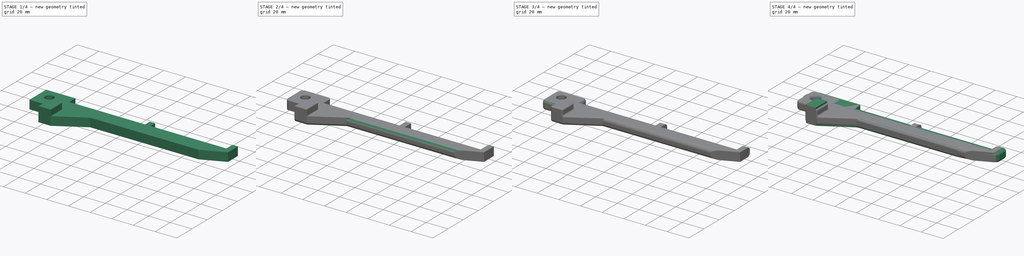
[diagram: build sequence overview — one tinted view per stage of 4, left to right]
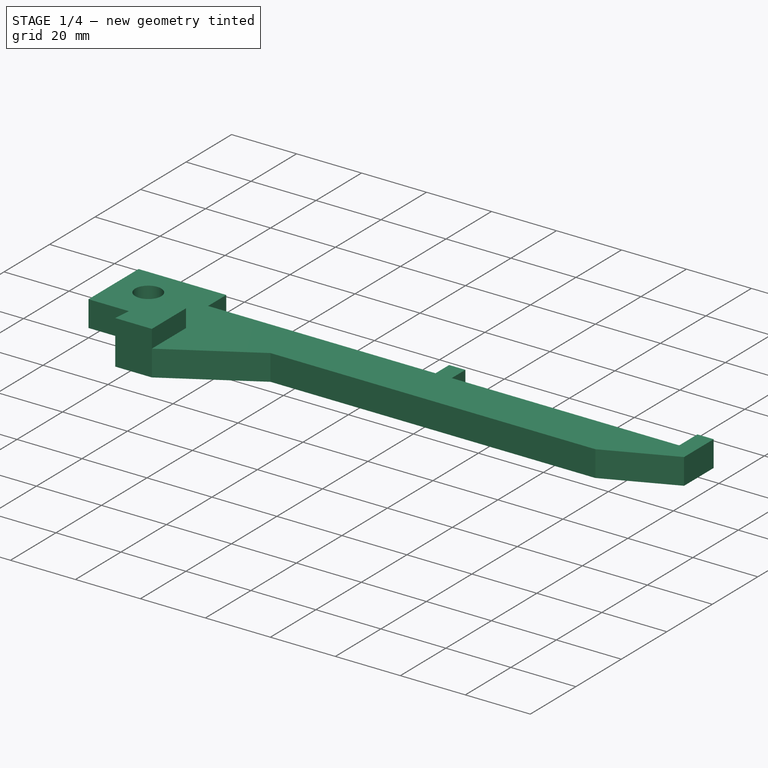
[diagram: stage 1 of 4 — iso view after this stage's code; geometry added in this stage tinted green]
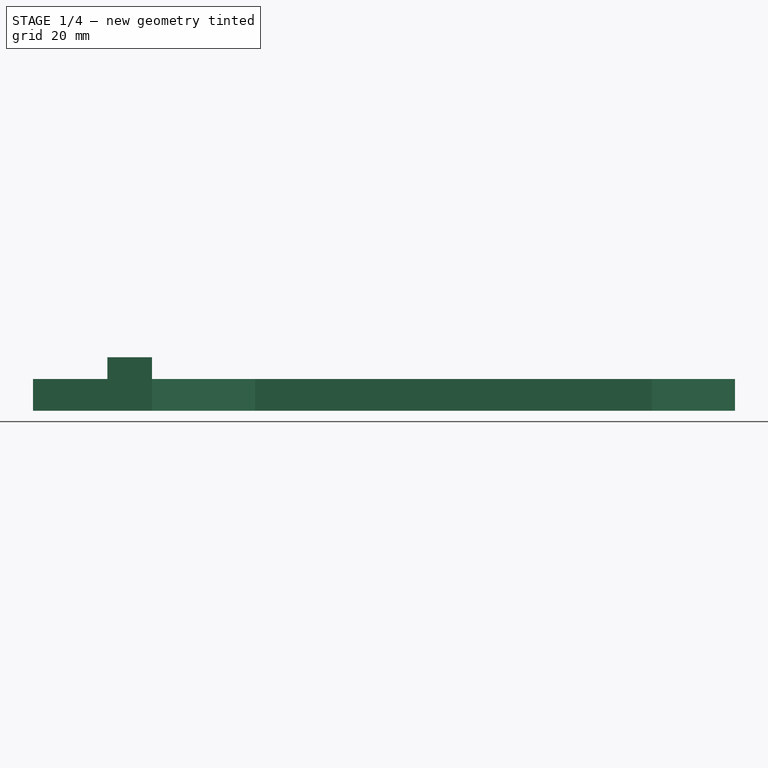
[diagram: stage 1 of 4 — front view after this stage's code; geometry added in this stage tinted green]
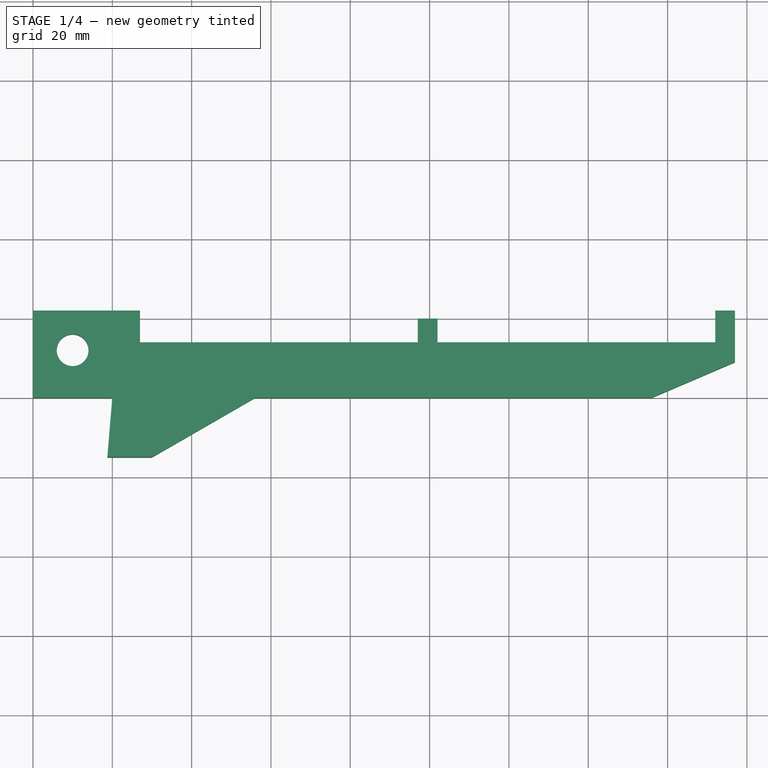
[diagram: stage 1 of 4 — top view after this stage's code; geometry added in this stage tinted green]
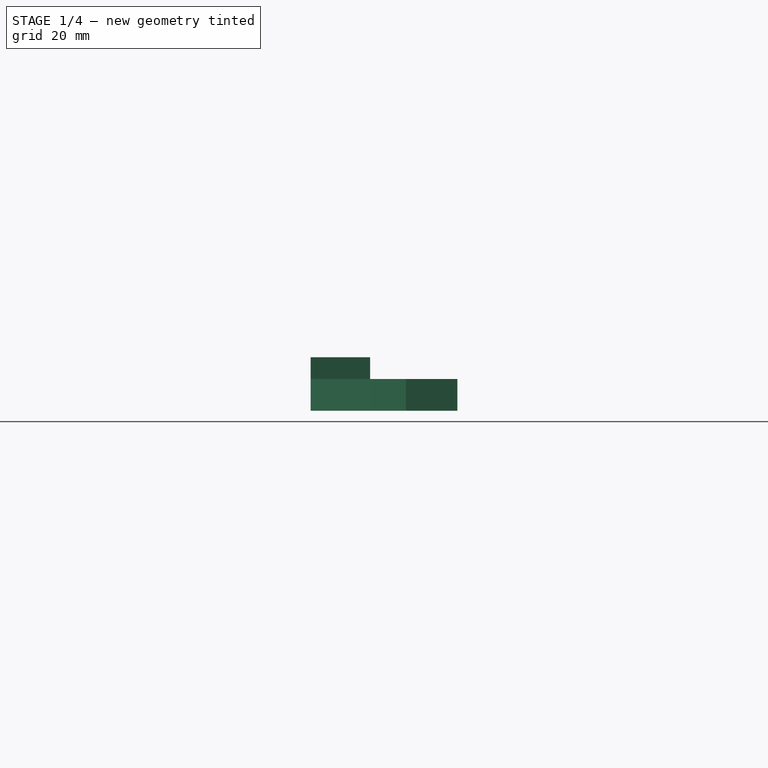
[diagram: stage 1 of 4 — right view after this stage's code; geometry added in this stage tinted green]
FCSTD DOCUMENT  (FreeCAD 0.17R11850 (Git))
Label: spool_arm_v1.1
License: CreativeCommons Attribution-ShareAlike
LicenseURL: http://creativecommons.org/licenses/by-sa/4.0/
objects: PartDesign::Fillet×5, Sketcher::SketchObject×2, Part::FeaturePython×1, PartDesign::Pad×1, PartDesign::Pocket×1, PartDesign::Chamfer×1, PartDesign::Body×1, Part::Feature×1
note: 15 computed .brp shape members not serialized (recipe doc carries the construction recipe); baked Part::Feature solids carry a one-line shape summary decoded from their .brp

FEATURE [Sketcher::SketchObject] Sketch
  MapMode = 5
  Support = -> [XY_Plane]
  sketch-geometry (18):
    g0: LineSegment StartX=0 StartY=22 StartZ=0 EndX=27 EndY=22 EndZ=0
    g1: LineSegment StartX=27 StartY=22 StartZ=0 EndX=27 EndY=14 EndZ=0
    g2: LineSegment StartX=172 StartY=14 StartZ=0 EndX=172 EndY=22 EndZ=0
    g3: LineSegment StartX=172 StartY=22 StartZ=0 EndX=177 EndY=22 EndZ=0
    g4: LineSegment StartX=177 StartY=22 StartZ=0 EndX=177 EndY=9 EndZ=0
    g5: LineSegment StartX=177 StartY=9 StartZ=0 EndX=156 EndY=0 EndZ=0
    g6: LineSegment StartX=156 StartY=0 StartZ=0 EndX=56 EndY=0 EndZ=0
    g7: LineSegment StartX=56 StartY=0 StartZ=0 EndX=30 EndY=-15 EndZ=0
    g8: LineSegment StartX=30 StartY=-15 StartZ=0 EndX=18.75 EndY=-15 EndZ=0
    g9: LineSegment StartX=18.75 StartY=-15 StartZ=0 EndX=20 EndY=0 EndZ=0
    g10: LineSegment StartX=20 StartY=0 StartZ=0 EndX=0 EndY=0 EndZ=0
    g11: LineSegment StartX=0 StartY=0 StartZ=0 EndX=0 EndY=22 EndZ=0
    g12: LineSegment StartX=27 StartY=14 StartZ=0 EndX=97 EndY=14 EndZ=0
    g13: LineSegment StartX=97 StartY=14 StartZ=0 EndX=97 EndY=20 EndZ=0
    g14: LineSegment StartX=97 StartY=20 StartZ=0 EndX=102 EndY=20 EndZ=0
    g15: LineSegment StartX=102 StartY=20 StartZ=0 EndX=102 EndY=14 EndZ=0
    g16: LineSegment StartX=102 StartY=14 StartZ=0 EndX=172 EndY=14 EndZ=0
    g17: Circle CenterX=10 CenterY=12 CenterZ=0 NormalX=0 NormalY=0 NormalZ=1 Radius=4
  constraints (55):
    c: Coincident(g0,g1)
    c: Coincident(g2,g3)
    c: Coincident(g3,g4)
    c: Coincident(g4,g5)
    c: Coincident(g5,g6)
    c: Coincident(g6,g7)
    c: Coincident(g7,g8)
    c: Coincident(g8,g9)
    c: Coincident(g9,g10)
    c: Coincident(g10,g11)
    c: Coincident(g0,g11)
    c: Vertical(g11)
    c: PointOnObject(g10,g-2)
    c: PointOnObject(g9,g-1)
    c: Horizontal(g0)
    c: Vertical(g1)
    c: Vertical(g2)
    c: Vertical(g4)
    c: Horizontal(g3)
    c: Horizontal(g6)
    c: PointOnObject(g6,g-1)
    c: DistanceY(g0) = 22
    c: DistanceY(g1,g1) = 8
    c: Coincident(g12,g13)
    c: Coincident(g13,g14)
    c: Coincident(g14,g15)
    c: Coincident(g15,g16)
    c: Coincident(g2,g16)
    c: Coincident(g1,g12)
    c: Horizontal(g12)
    c: Horizontal(g16)
    c: Vertical(g15)
    c: Vertical(g13)
    c: Horizontal(g14)
    c: DistanceY(g15,g15) = 6
    c: Equal(g12,g16)
    c: DistanceX(g16,g16) = 70
    c: Equal(g12,g16)
    c: DistanceX(g0,g0) = 27
    c: DistanceY(g9,g9) = 15
    c: DistanceX(g3,g3) = 5
    c: DistanceY(g4,g4) = 13
    c: DistanceX(g5,g5) = 21
    c: DistanceX(g6,g6) = 100
    c: DistanceY(g7,g7) = 15
    c: DistanceX(g7,g7) = 26
    c: DistanceX(g10,g10) = 20
    c: Coincident(g10,g-1)
    c: Equal(g2,g1)
    c: DistanceX(g17) = 10
    c: DistanceY(g17) = 12
    c: Radius(g17) = 4
    c: DistanceY(g2,g0) = 0
    c: DistanceX(g9,g9) = 1.25
    c: DistanceX(g8,g8) = 11.25
FEATURE [PartDesign::Pad] Pad
  Length = 13.5
  Length2 = 100
  Profile = -> Sketch
  Type = 0
FEATURE [Sketcher::SketchObject] Sketch001
  ExternalGeometry = -> [Pad]
  MapMode = 5
  Placement = pos=(0,0,13.5) rot=(0,0,1;0rad)
  Support = -> [Pad]
  sketch-geometry (8):
    g0: LineSegment StartX=30 StartY=0 StartZ=0 EndX=0 EndY=0 EndZ=0
    g1: LineSegment StartX=0 StartY=0 StartZ=0 EndX=0 EndY=22 EndZ=0
    g2: LineSegment StartX=0 StartY=22 StartZ=0 EndX=177 EndY=22 EndZ=0
    g3: LineSegment StartX=177 StartY=22 StartZ=0 EndX=177 EndY=9 EndZ=0
    g4: LineSegment StartX=177 StartY=9 StartZ=0 EndX=156 EndY=0 EndZ=0
    g5: LineSegment StartX=156 StartY=0 StartZ=0 EndX=56 EndY=0 EndZ=0
    g6: LineSegment StartX=56 StartY=0 StartZ=0 EndX=30 EndY=-15 EndZ=0
    g7: LineSegment StartX=30 StartY=-15 StartZ=0 EndX=30 EndY=0 EndZ=0
  constraints (18):
    c: Coincident(g0,g1)
    c: Coincident(g3,g4)
    c: Coincident(g4,g5)
    c: Coincident(g5,g6)
    c: Coincident(g6,g7)
    c: Coincident(g0,g7)
    c: Horizontal(g0)
    c: Vertical(g7)
    c: Coincident(g0,g-5)
    c: Vertical(g1)
    c: Coincident(g2,g3)
    c: Coincident(g2,g-6)
    c: Coincident(g3,g-6)
    c: Coincident(g4,g-7)
    c: Coincident(g5,g-4)
    c: Coincident(g6,g-4)
    c: Coincident(g1,g2)
    c: Coincident(g1,g-5)
FEATURE [PartDesign::Pocket] Pocket
  BaseFeature = -> Pad
  Length = 5.5
  Profile = -> Sketch001
  Type = 0
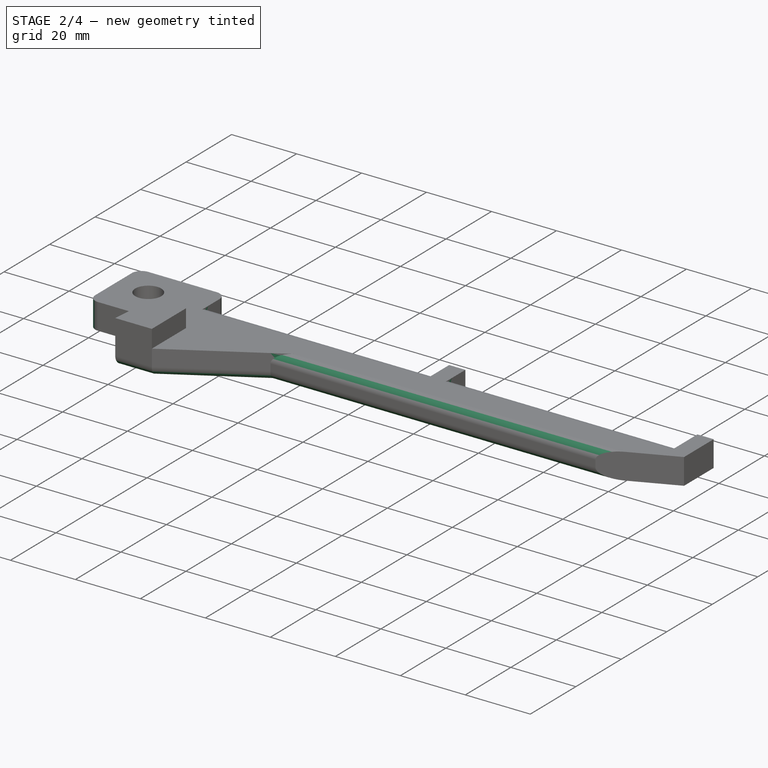
[diagram: stage 2 of 4 — iso view after this stage's code; geometry added in this stage tinted green]
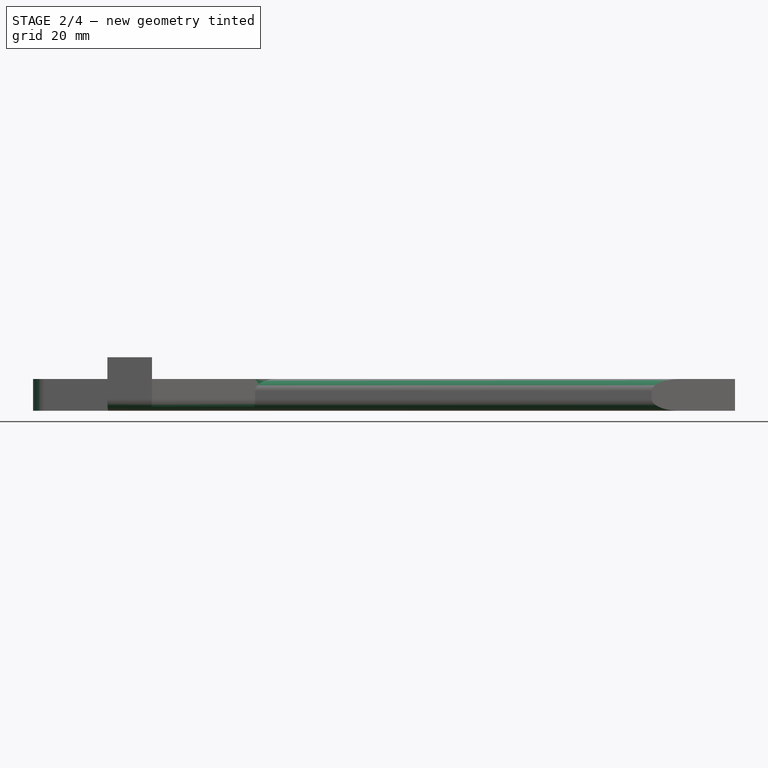
[diagram: stage 2 of 4 — front view after this stage's code; geometry added in this stage tinted green]
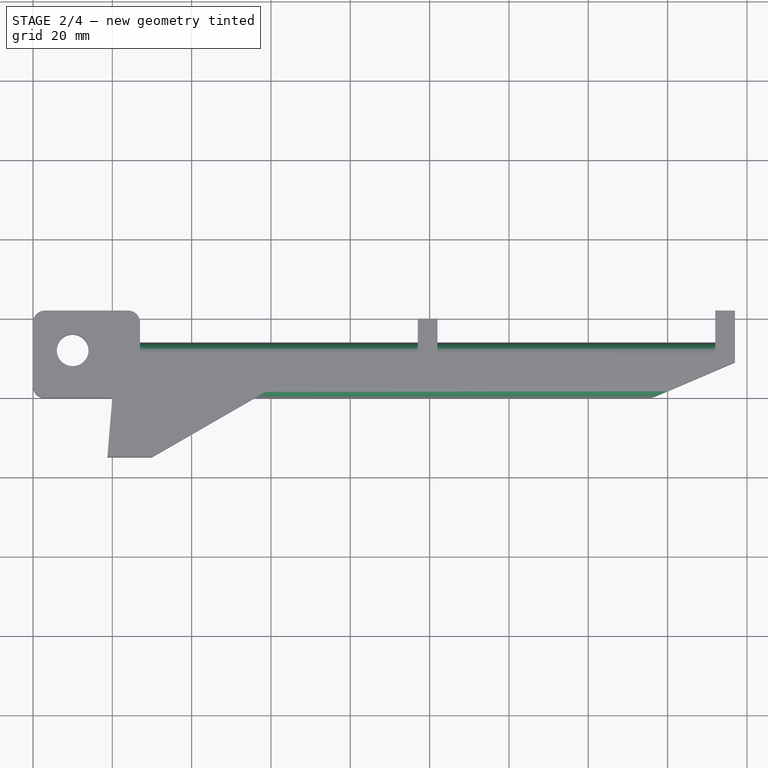
[diagram: stage 2 of 4 — top view after this stage's code; geometry added in this stage tinted green]
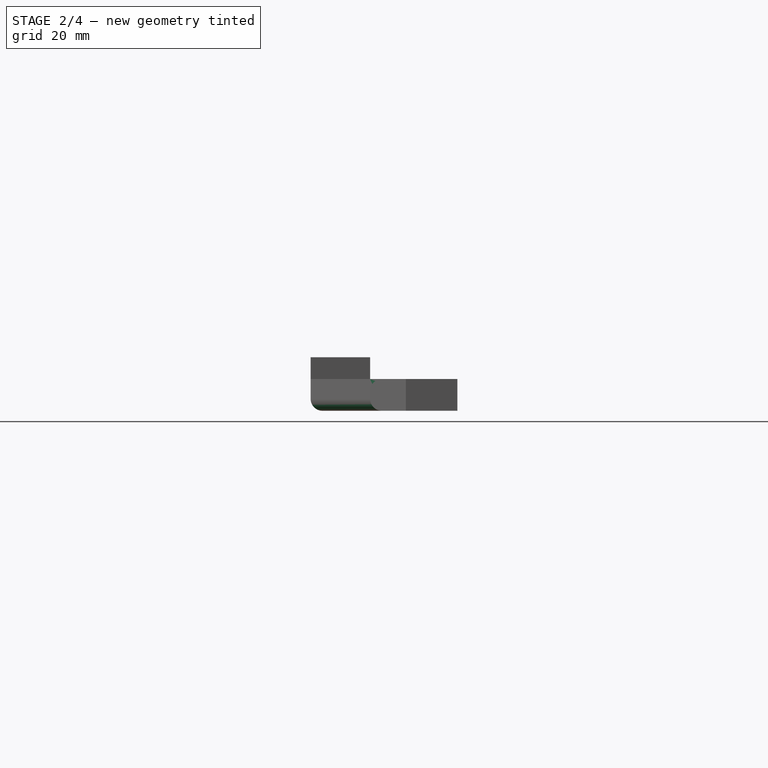
[diagram: stage 2 of 4 — right view after this stage's code; geometry added in this stage tinted green]
FEATURE [PartDesign::Fillet] Fillet
  Base = -> Pocket [Edge35,Edge6,Edge31,Edge10,Edge26,Edge15,Edge16,Edge17]
  BaseFeature = -> Pocket
  Radius = 3
FEATURE [PartDesign::Fillet] Fillet001
  Base = -> Fillet [Edge51,Edge47,Edge58]
  BaseFeature = -> Fillet
  Radius = 3
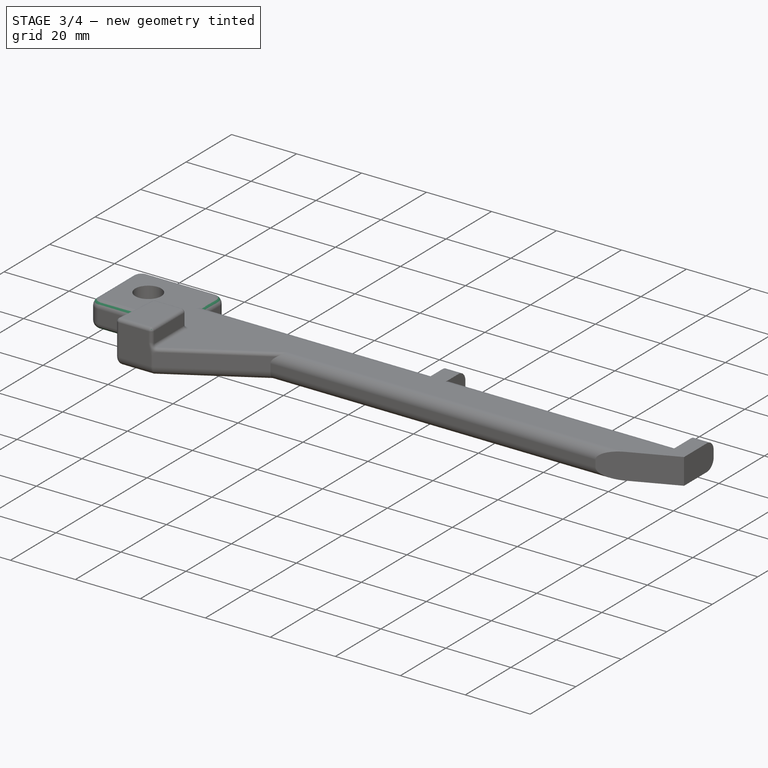
[diagram: stage 3 of 4 — iso view after this stage's code; geometry added in this stage tinted green]
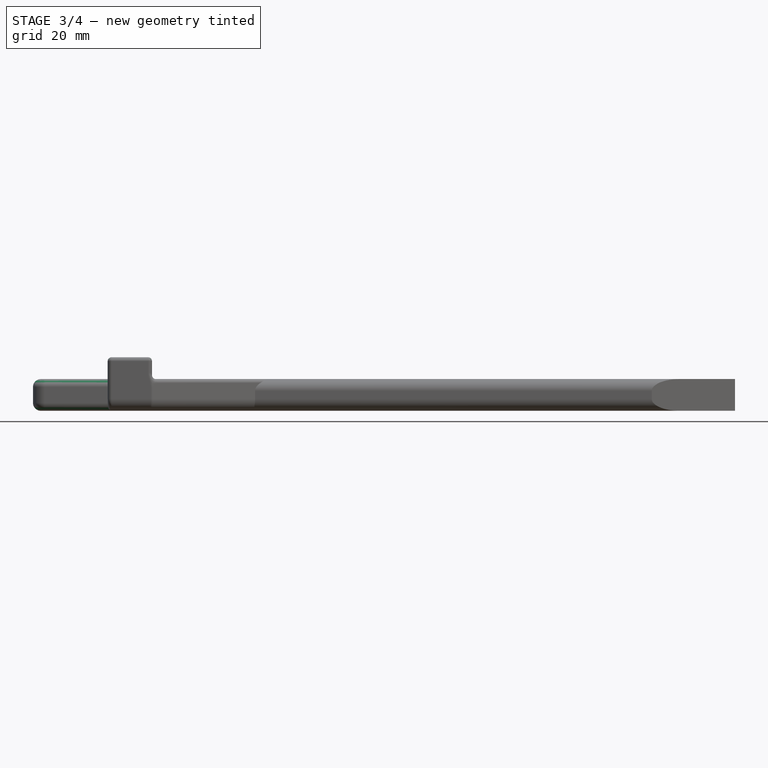
[diagram: stage 3 of 4 — front view after this stage's code; geometry added in this stage tinted green]
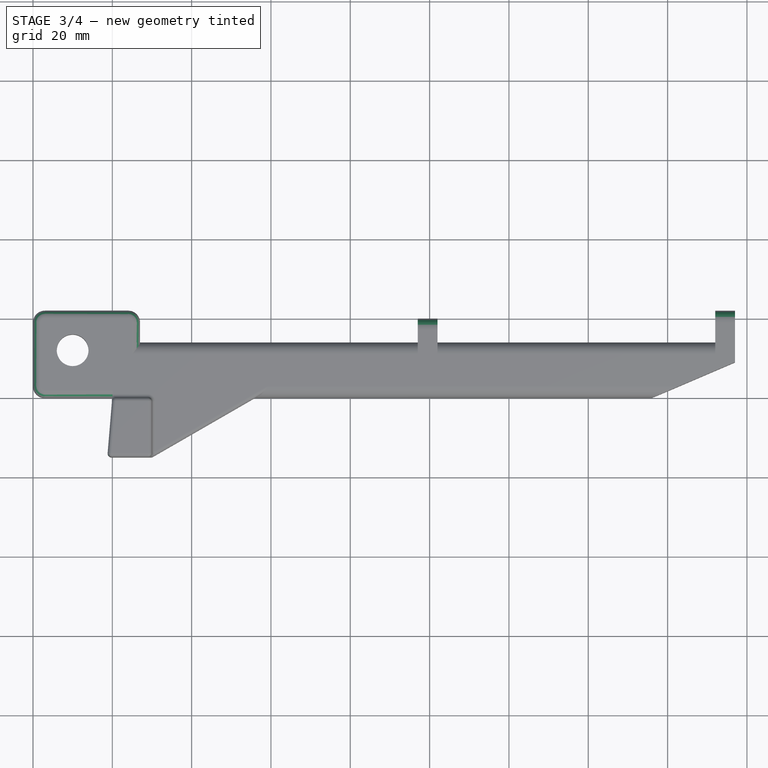
[diagram: stage 3 of 4 — top view after this stage's code; geometry added in this stage tinted green]
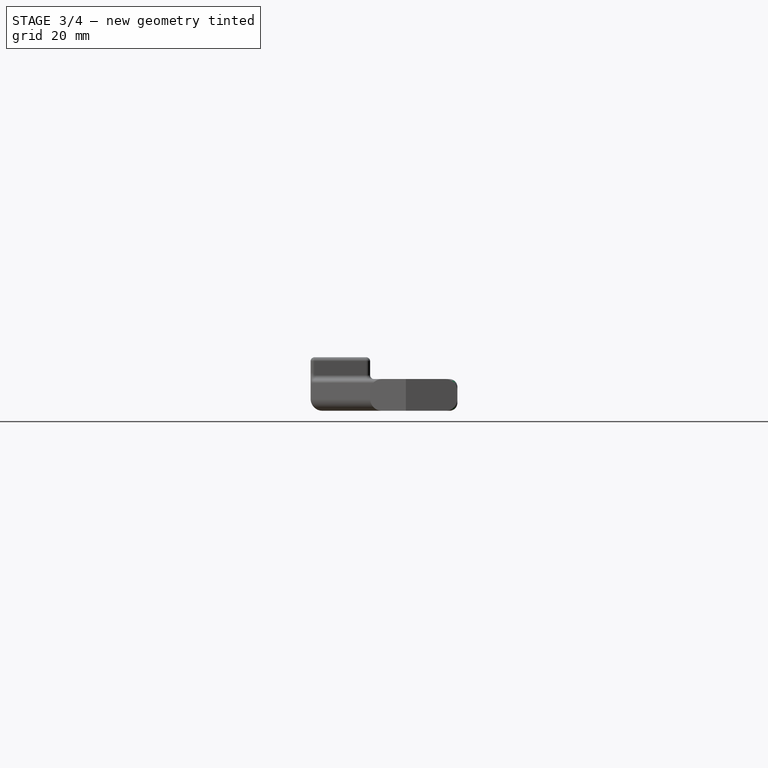
[diagram: stage 3 of 4 — right view after this stage's code; geometry added in this stage tinted green]
FEATURE [PartDesign::Fillet] Fillet002
  Base = -> Fillet001 [Edge44,Edge8]
  BaseFeature = -> Fillet001
  Radius = 2
FEATURE [PartDesign::Fillet] Fillet003
  Base = -> Fillet002 [Edge86,Edge26,Edge60,Edge14]
  BaseFeature = -> Fillet002
  Radius = 3
FEATURE [PartDesign::Fillet] Fillet004
  Base = -> Fillet003 [Face38,Edge67,Edge121,Edge102,Edge120,Edge103,Edge128,Edge104,Edge65]
  BaseFeature = -> Fillet003
  Radius = 1
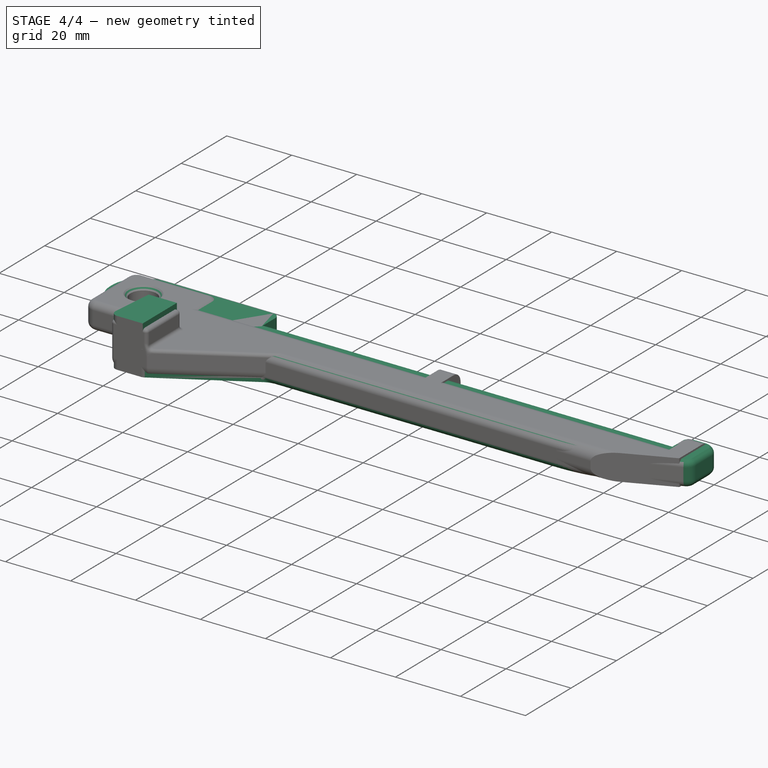
[diagram: stage 4 of 4 — iso view after this stage's code; geometry added in this stage tinted green]
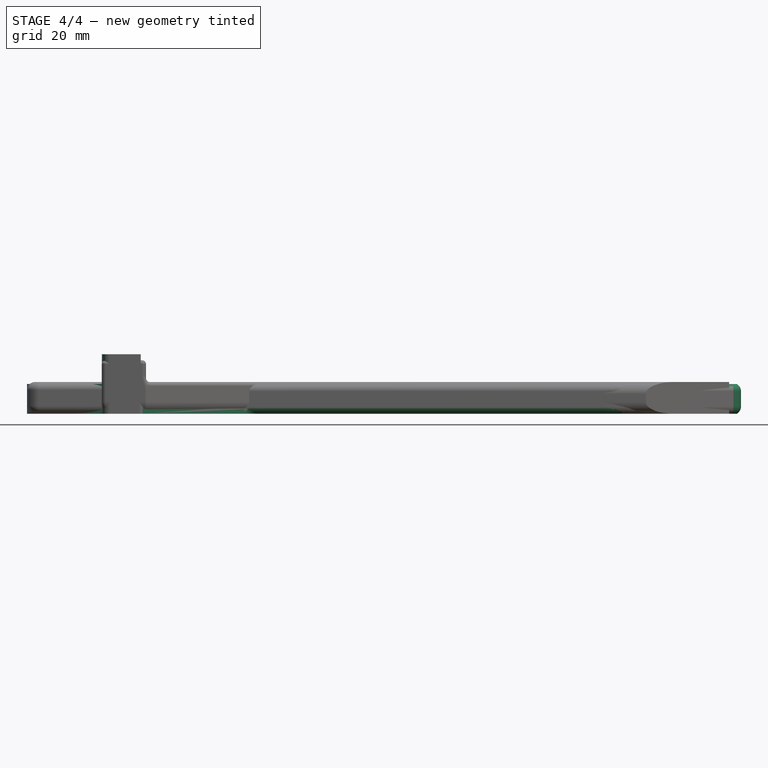
[diagram: stage 4 of 4 — front view after this stage's code; geometry added in this stage tinted green]
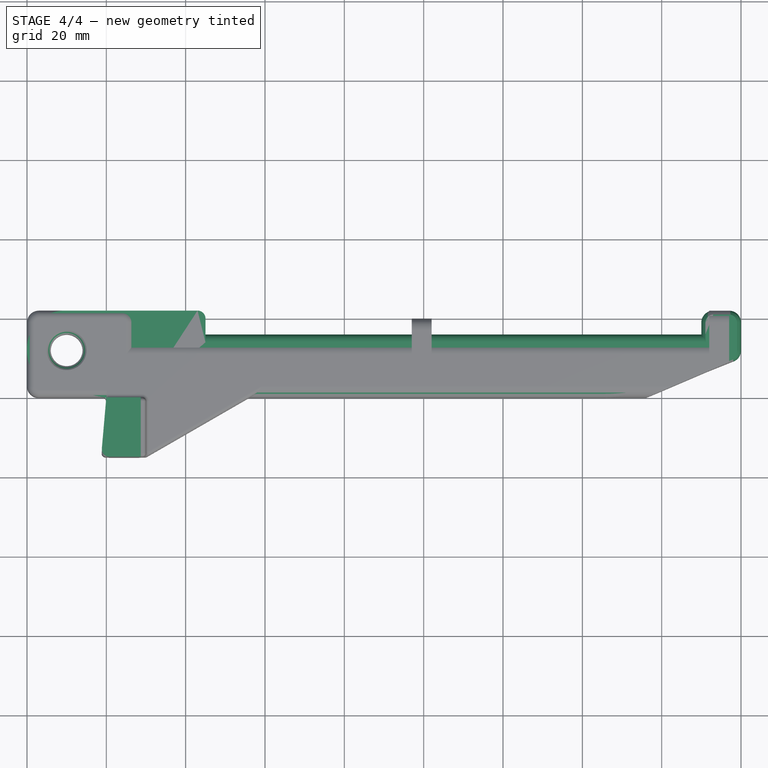
[diagram: stage 4 of 4 — top view after this stage's code; geometry added in this stage tinted green]
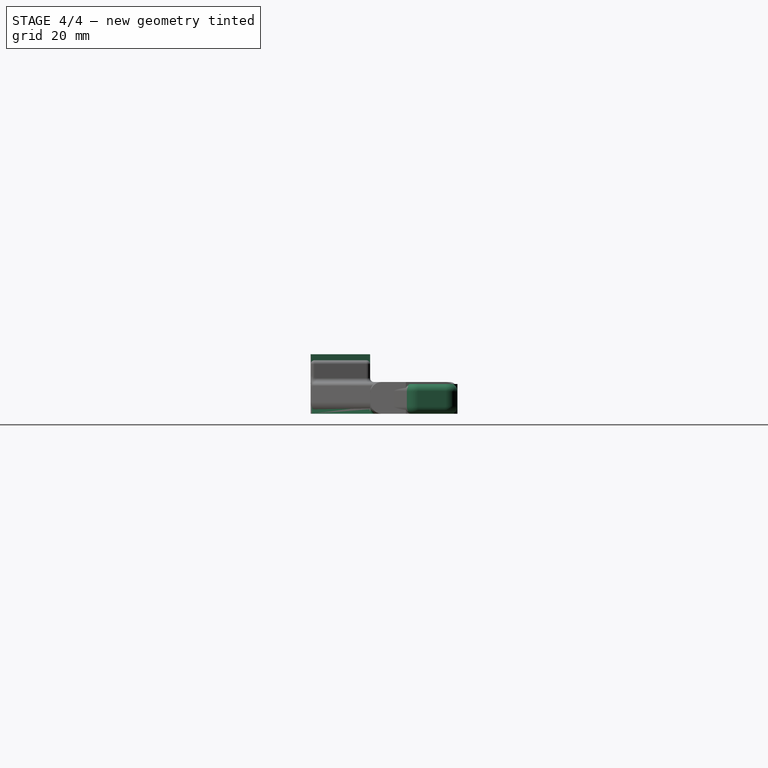
[diagram: stage 4 of 4 — right view after this stage's code; geometry added in this stage tinted green]
FEATURE [Part::FeaturePython] spool_arm_v0_2_01  # a2plus imported part (geometry in sourceFile) (typed FeaturePython)
  fixedPosition = true
  sourceFile = <userpath>/Projects/taz-quiver/Production_parts/Printed_parts/X/spool_arm/spool_arm_v0.2.FCStd
  timeLastImport = 1.52536e+09
  updateColors = true
FEATURE [PartDesign::Chamfer] Chamfer
  Base = -> Fillet004 [Edge97,Edge28]
  BaseFeature = -> Fillet004
  Size = 1
FEATURE [PartDesign::Body] Body
  Group = -> [Sketch,Pad,Sketch001,Pocket,Fillet,Fillet001,Fillet002,Fillet003,Fillet004,Chamfer]
  Origin = -> Origin
  Tip = -> Chamfer
FEATURE [Part::Feature] Chamfer001
  shape: bbox 177.1 x 37.24 x 13.57 mm, 76 faces (baked)
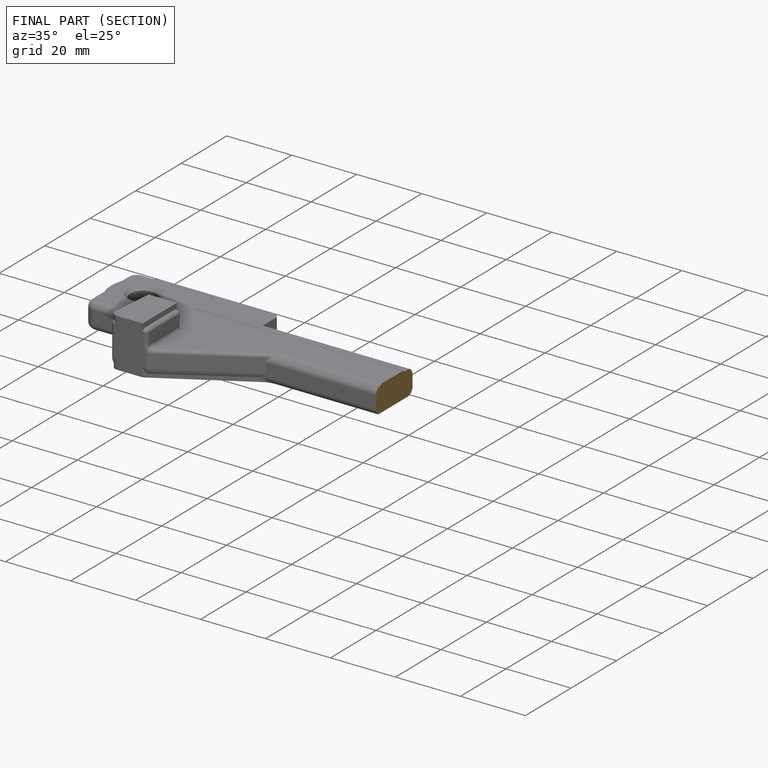
[diagram: finished part — half-section view (interior)]
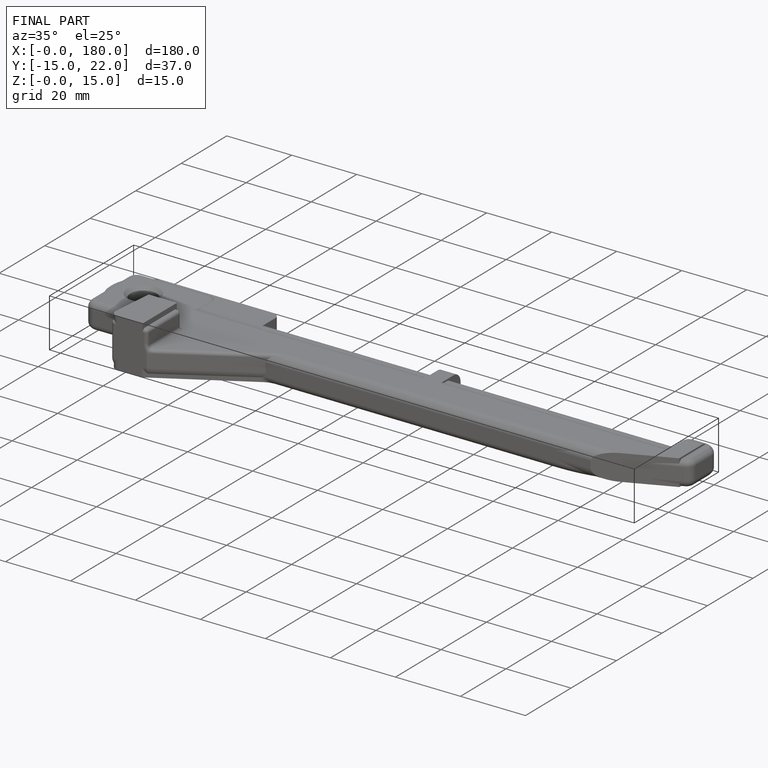
[diagram: finished part — iso view with bounding-box wireframe]
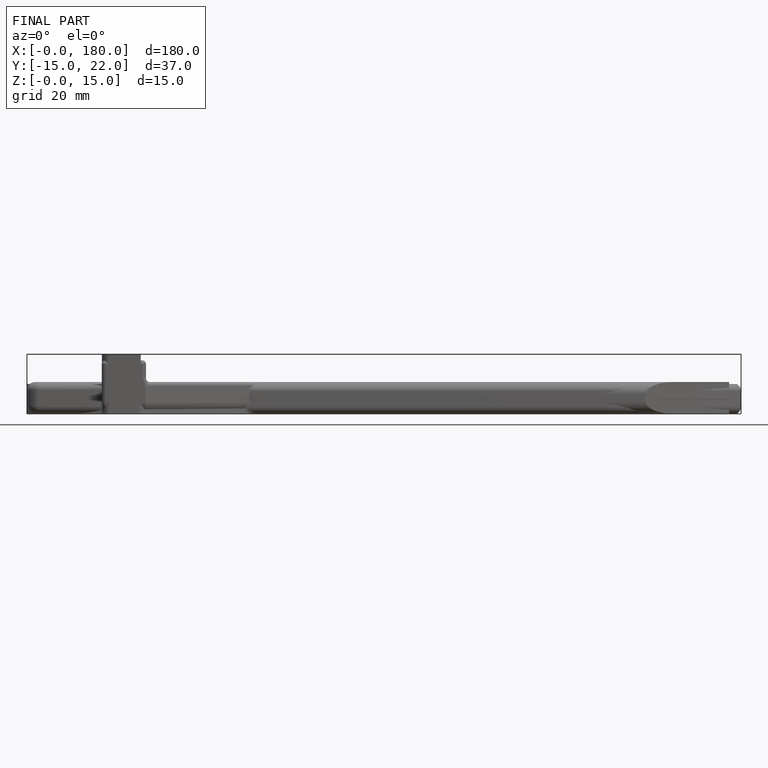
[diagram: finished part — front view with bounding-box wireframe]
